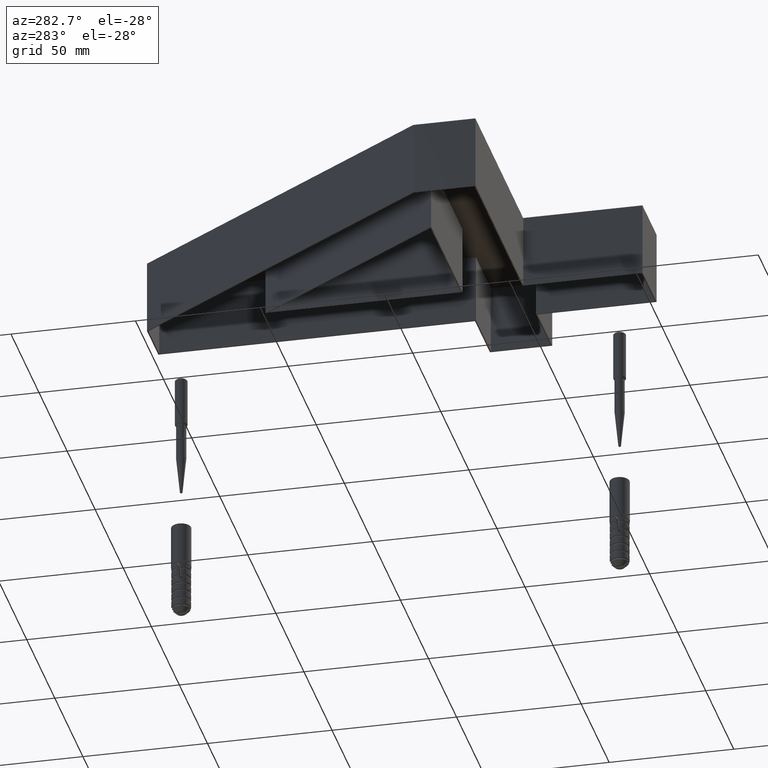
[diagram: clean part render]
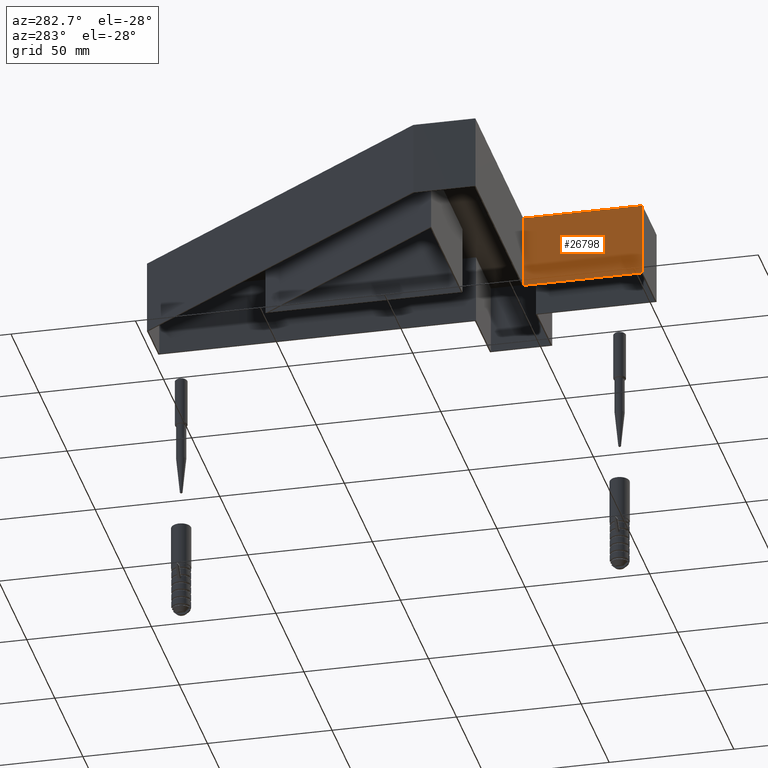
[diagram: same view with one face highlighted and labeled with its STEP entity id]
A machine part, auxiliary view. The second image highlights one B-rep face of the part: STEP entity #26798.
In plain terms, the highlighted planar face has unit normal (1, 0, 0).
Its self-contained STEP definition (entity closure, byte-faithful):
#1303 = ORIENTED_EDGE ( 'NONE', *, *, #14912, .F. ) ;
#1561 = VECTOR ( 'NONE', #26039, 1000.000000000000000 ) ;
#1790 = VECTOR ( 'NONE', #15262, 1000.000000000000000 ) ;
#1965 = CARTESIAN_POINT ( 'NONE',  ( -12.50000000000000000, -3.008588033599418700E-015, 1.750000000000000000 ) ) ;
#2031 = EDGE_CURVE ( 'NONE', #16529, #9121, #8647, .T. ) ;
#2839 = VERTEX_POINT ( 'NONE', #15886 ) ;
#4512 = CARTESIAN_POINT ( 'NONE',  ( -12.50000000000000000, 47.87878787878740600, 2.000000000000000000 ) ) ;
#4832 = ORIENTED_EDGE ( 'NONE', *, *, #20704, .T. ) ;
#5551 = PLANE ( 'NONE',  #7853 ) ;
#7629 = CARTESIAN_POINT ( 'NONE',  ( -12.50000000000000000, -3.008588033599418700E-015, 2.000000000000000000 ) ) ;
#7853 = AXIS2_PLACEMENT_3D ( 'NONE', #7629, #9568, #13770 ) ;
#7972 = ORIENTED_EDGE ( 'NONE', *, *, #2031, .T. ) ;
#8647 = LINE ( 'NONE', #23143, #13636 ) ;
#9121 = VERTEX_POINT ( 'NONE', #21447 ) ;
#9568 = DIRECTION ( 'NONE',  ( 1.000000000000000000, 0.0000000000000000000, 0.0000000000000000000 ) ) ;
#13636 = VECTOR ( 'NONE', #22937, 1000.000000000000000 ) ;
#13770 = DIRECTION ( 'NONE',  ( 0.0000000000000000000, 0.0000000000000000000, -1.000000000000000000 ) ) ;
#14379 = CARTESIAN_POINT ( 'NONE',  ( -12.50000000000000000, -3.008588033599418700E-015, -28.00000000000000000 ) ) ;
#14912 = EDGE_CURVE ( 'NONE', #20267, #2839, #15752, .T. ) ;
#15262 = DIRECTION ( 'NONE',  ( 0.0000000000000000000, 1.000000000000000000, 0.0000000000000000000 ) ) ;
#15544 = ORIENTED_EDGE ( 'NONE', *, *, #22992, .F. ) ;
#15752 = LINE ( 'NONE', #19592, #1790 ) ;
#15886 = CARTESIAN_POINT ( 'NONE',  ( -12.50000000000000000, 47.87878787878740600, -28.00000000000000000 ) ) ;
#16397 = FACE_OUTER_BOUND ( 'NONE', #21732, .T. ) ;
#16529 = VERTEX_POINT ( 'NONE', #1965 ) ;
#19592 = CARTESIAN_POINT ( 'NONE',  ( -12.50000000000000000, 0.0000000000000000000, -28.00000000000000000 ) ) ;
#19763 = LINE ( 'NONE', #20401, #26790 ) ;
#20267 = VERTEX_POINT ( 'NONE', #14379 ) ;
#20401 = CARTESIAN_POINT ( 'NONE',  ( -12.50000000000000000, -3.008588033599418700E-015, 2.000000000000000000 ) ) ;
#20704 = EDGE_CURVE ( 'NONE', #9121, #2839, #25492, .T. ) ;
#21447 = CARTESIAN_POINT ( 'NONE',  ( -12.50000000000000000, 47.87878787878740600, 1.750000000000000000 ) ) ;
#21732 = EDGE_LOOP ( 'NONE', ( #15544, #7972, #4832, #1303 ) ) ;
#22355 = DIRECTION ( 'NONE',  ( -0.0000000000000000000, -0.0000000000000000000, -1.000000000000000000 ) ) ;
#22937 = DIRECTION ( 'NONE',  ( -0.0000000000000000000, 1.000000000000000000, -0.0000000000000000000 ) ) ;
#22992 = EDGE_CURVE ( 'NONE', #16529, #20267, #19763, .T. ) ;
#23143 = CARTESIAN_POINT ( 'NONE',  ( -12.50000000000000000, -3.008588033599418700E-015, 1.750000000000000000 ) ) ;
#25492 = LINE ( 'NONE', #4512, #1561 ) ;
#26039 = DIRECTION ( 'NONE',  ( -0.0000000000000000000, -0.0000000000000000000, -1.000000000000000000 ) ) ;
#26790 = VECTOR ( 'NONE', #22355, 1000.000000000000000 ) ;
#26798 = ADVANCED_FACE ( 'NONE', ( #16397 ), #5551, .F. ) ;